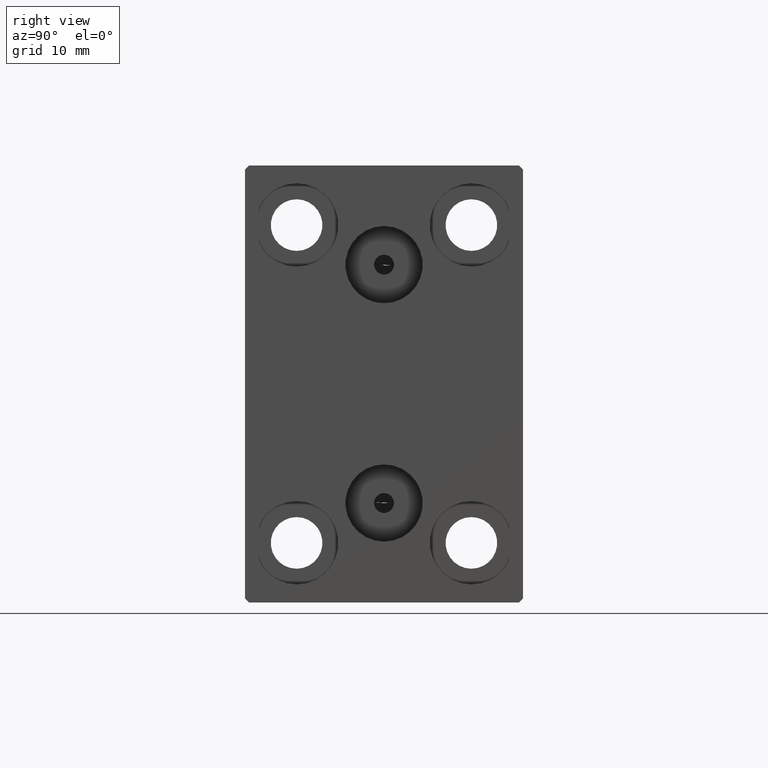
[diagram: clean part render]
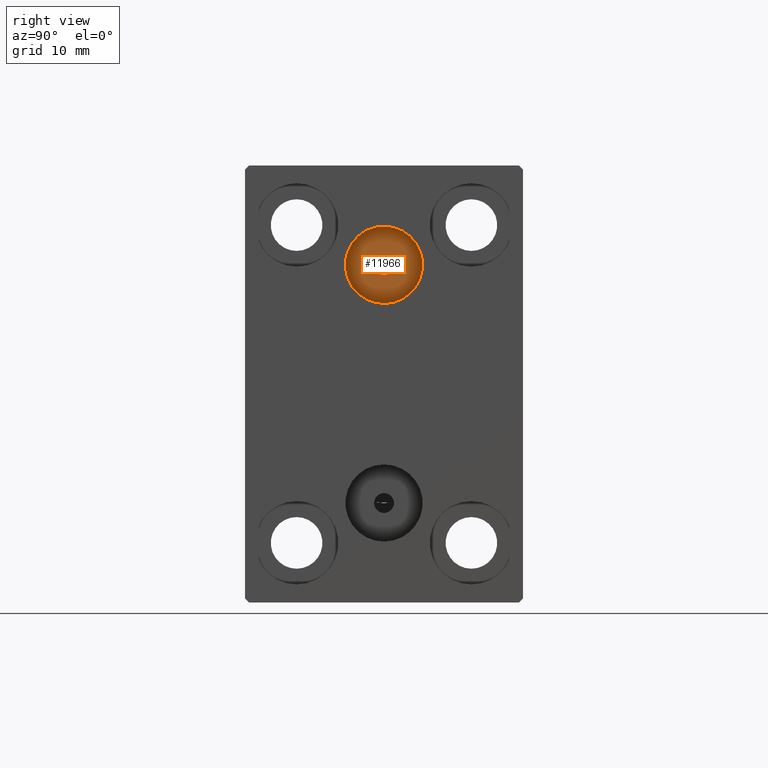
[diagram: same view with one face highlighted and labeled with its STEP entity id]
A machine part, right view. The second image highlights one B-rep face of the part: STEP entity #11966.
In plain terms, the highlighted planar face has unit normal (1, 0, 0).
Its self-contained STEP definition (entity closure, byte-faithful):
#614 = DIRECTION ( 'NONE',  ( 1.000000000000000000, 0.000000000000000000, 0.000000000000000000 ) ) ;
#2838 = EDGE_LOOP ( 'NONE', ( #3929, #11000 ) ) ;
#3054 = VERTEX_POINT ( 'NONE', #41163 ) ;
#3929 = ORIENTED_EDGE ( 'NONE', *, *, #40171, .F. ) ;
#4206 = DIRECTION ( 'NONE',  ( 0.000000000000000000, 0.000000000000000000, -1.000000000000000000 ) ) ;
#4374 = DIRECTION ( 'NONE',  ( 0.000000000000000000, 0.000000000000000000, -1.000000000000000000 ) ) ;
#4426 = DIRECTION ( 'NONE',  ( 0.000000000000000000, 0.000000000000000000, -1.000000000000000000 ) ) ;
#7320 = CARTESIAN_POINT ( 'NONE',  ( 46.00000000000000000, -1.836970198721029589E-15, 15.00000000000000000 ) ) ;
#7854 = FACE_BOUND ( 'NONE', #2838, .T. ) ;
#11000 = ORIENTED_EDGE ( 'NONE', *, *, #36278, .F. ) ;
#11074 = CARTESIAN_POINT ( 'NONE',  ( 46.00000000000000000, -1.836970198721029589E-15, 15.00000000000000000 ) ) ;
#11966 = ADVANCED_FACE ( 'NONE', ( #7854, #32704 ), #29143, .T. ) ;
#13763 = DIRECTION ( 'NONE',  ( 1.000000000000000000, 0.000000000000000000, 0.000000000000000000 ) ) ;
#14966 = CIRCLE ( 'NONE', #39779, 1.249999999999999334 ) ;
#15475 = DIRECTION ( 'NONE',  ( 0.000000000000000000, 0.000000000000000000, -1.000000000000000000 ) ) ;
#15667 = CIRCLE ( 'NONE', #30546, 1.249999999999999334 ) ;
#16363 = ORIENTED_EDGE ( 'NONE', *, *, #22766, .T. ) ;
#20662 = VERTEX_POINT ( 'NONE', #38334 ) ;
#21283 = DIRECTION ( 'NONE',  ( 1.000000000000000000, 0.000000000000000000, 0.000000000000000000 ) ) ;
#22280 = DIRECTION ( 'NONE',  ( 0.000000000000000000, 0.000000000000000000, -1.000000000000000000 ) ) ;
#22766 = EDGE_CURVE ( 'NONE', #3054, #20662, #41792, .T. ) ;
#22791 = CIRCLE ( 'NONE', #36964, 4.859999999999999432 ) ;
#24804 = CARTESIAN_POINT ( 'NONE',  ( 46.00000000000000000, -1.836970198721029589E-15, 15.00000000000000000 ) ) ;
#24996 = CARTESIAN_POINT ( 'NONE',  ( 46.00000000000000000, -1.836970198721029589E-15, 15.00000000000000000 ) ) ;
#25609 = DIRECTION ( 'NONE',  ( 1.000000000000000000, 0.000000000000000000, 0.000000000000000000 ) ) ;
#26104 = CARTESIAN_POINT ( 'NONE',  ( 46.00000000000000000, -1.683889348827610851E-15, 16.25000000000000000 ) ) ;
#29143 = PLANE ( 'NONE',  #30281 ) ;
#29831 = ORIENTED_EDGE ( 'NONE', *, *, #40450, .T. ) ;
#30281 = AXIS2_PLACEMENT_3D ( 'NONE', #38714, #25609, #22280 ) ;
#30546 = AXIS2_PLACEMENT_3D ( 'NONE', #11074, #21283, #4426 ) ;
#31677 = EDGE_LOOP ( 'NONE', ( #29831, #16363 ) ) ;
#32331 = DIRECTION ( 'NONE',  ( 1.000000000000000000, 0.000000000000000000, 0.000000000000000000 ) ) ;
#32704 = FACE_OUTER_BOUND ( 'NONE', #31677, .T. ) ;
#36278 = EDGE_CURVE ( 'NONE', #42579, #40391, #14966, .T. ) ;
#36964 = AXIS2_PLACEMENT_3D ( 'NONE', #24996, #614, #4374 ) ;
#38334 = CARTESIAN_POINT ( 'NONE',  ( 46.00000000000000000, -1.836970198721029589E-15, 10.14000000000000057 ) ) ;
#38714 = CARTESIAN_POINT ( 'NONE',  ( 46.00000000000000000, -1.836970198721029589E-15, 15.00000000000000000 ) ) ;
#38959 = AXIS2_PLACEMENT_3D ( 'NONE', #7320, #13763, #4206 ) ;
#39779 = AXIS2_PLACEMENT_3D ( 'NONE', #24804, #32331, #15475 ) ;
#40146 = CARTESIAN_POINT ( 'NONE',  ( 46.00000000000000000, -1.836970198721029589E-15, 13.75000000000000000 ) ) ;
#40171 = EDGE_CURVE ( 'NONE', #40391, #42579, #15667, .T. ) ;
#40391 = VERTEX_POINT ( 'NONE', #40146 ) ;
#40450 = EDGE_CURVE ( 'NONE', #20662, #3054, #22791, .T. ) ;
#41163 = CARTESIAN_POINT ( 'NONE',  ( 46.00000000000000000, -1.241791854335416311E-15, 19.85999999999999943 ) ) ;
#41792 = CIRCLE ( 'NONE', #38959, 4.859999999999999432 ) ;
#42579 = VERTEX_POINT ( 'NONE', #26104 ) ;